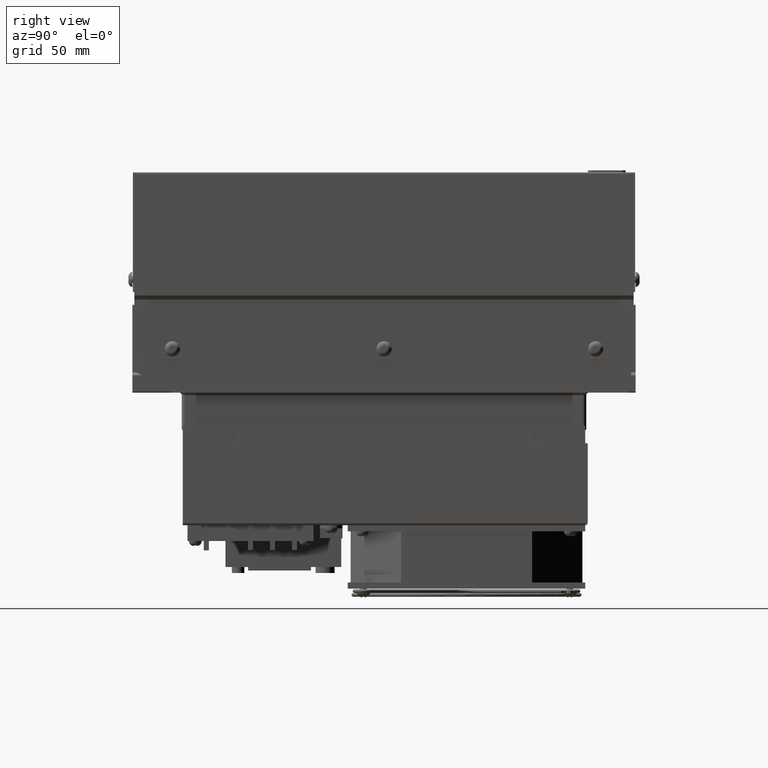
[diagram: clean part render]
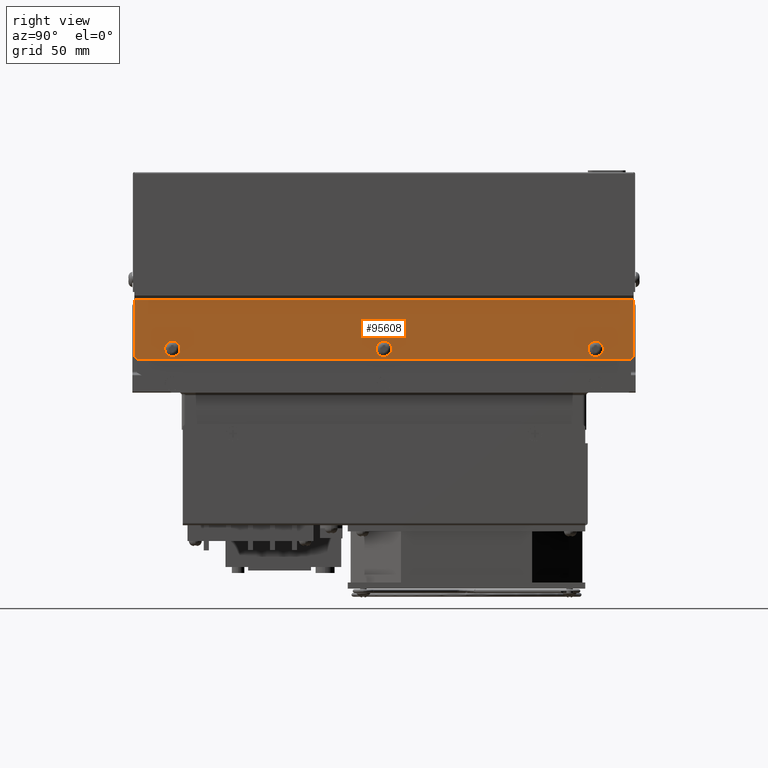
[diagram: same view with one face highlighted and labeled with its STEP entity id]
A machine part, right view. The second image highlights one B-rep face of the part: STEP entity #95608.
In plain terms, the highlighted planar face has unit normal (1, 0, 0).
Its self-contained STEP definition (entity closure, byte-faithful):
#134 = ORIENTED_EDGE ( 'NONE', *, *, #5774, .T. ) ;
#209 = EDGE_LOOP ( 'NONE', ( #54137, #74664 ) ) ;
#1973 = CARTESIAN_POINT ( 'NONE',  ( 3.979614742927883900, -3.644400000000000100, 5.649725254076705600 ) ) ;
#3207 = VECTOR ( 'NONE', #66459, 39.37007874015748100 ) ;
#4606 = CARTESIAN_POINT ( 'NONE',  ( 3.979614742927883900, -13.51440000000000200, 5.699725254076705400 ) ) ;
#5100 = ORIENTED_EDGE ( 'NONE', *, *, #68242, .T. ) ;
#5774 = EDGE_CURVE ( 'NONE', #29839, #86922, #36376, .T. ) ;
#8900 = EDGE_CURVE ( 'NONE', #45495, #24606, #87462, .T. ) ;
#10615 = VECTOR ( 'NONE', #96714, 39.37007874015748100 ) ;
#11985 = VECTOR ( 'NONE', #14662, 39.37007874015748100 ) ;
#12215 = CIRCLE ( 'NONE', #13303, 0.07799999999999955600 ) ;
#13168 = EDGE_CURVE ( 'NONE', #65479, #49522, #45879, .T. ) ;
#13303 = AXIS2_PLACEMENT_3D ( 'NONE', #69603, #23542, #77303 ) ;
#13685 = LINE ( 'NONE', #33733, #93123 ) ;
#14662 = DIRECTION ( 'NONE',  ( -0.0000000000000000000, 1.000000000000000000, 0.0000000000000000000 ) ) ;
#15142 = CARTESIAN_POINT ( 'NONE',  ( 3.979614742927885200, -12.76432955380341200, 5.858333312979771900 ) ) ;
#17455 = AXIS2_PLACEMENT_3D ( 'NONE', #28736, #82526, #36508 ) ;
#18359 = VECTOR ( 'NONE', #24644, 39.37007874015748100 ) ;
#18609 = DIRECTION ( 'NONE',  ( -0.0000000000000000000, 0.0000000000000000000, -1.000000000000000000 ) ) ;
#19700 = CIRCLE ( 'NONE', #30820, 0.07799999999999955600 ) ;
#19822 = CARTESIAN_POINT ( 'NONE',  ( 3.979614742927885200, -12.76432955380341200, 5.858333312979771900 ) ) ;
#21175 = CARTESIAN_POINT ( 'NONE',  ( 3.979614742927883900, -13.46440000000000100, 5.649725254076705600 ) ) ;
#22494 = CARTESIAN_POINT ( 'NONE',  ( 3.979614742927883900, -13.51440000000000200, 5.699725254076706300 ) ) ;
#22583 = AXIS2_PLACEMENT_3D ( 'NONE', #98969, #83857, #37825 ) ;
#22832 = DIRECTION ( 'NONE',  ( 0.0000000000000000000, 0.0000000000000000000, -1.000000000000000000 ) ) ;
#23321 = EDGE_CURVE ( 'NONE', #88721, #70399, #99723, .T. ) ;
#23337 = DIRECTION ( 'NONE',  ( -1.000000000000000000, -0.0000000000000000000, -0.0000000000000000000 ) ) ;
#23542 = DIRECTION ( 'NONE',  ( -1.000000000000000000, -0.0000000000000000000, -0.0000000000000000000 ) ) ;
#24606 = VERTEX_POINT ( 'NONE', #82992 ) ;
#24644 = DIRECTION ( 'NONE',  ( 0.0000000000000000000, 0.7071067811865398000, 0.7071067811865552300 ) ) ;
#27158 = CARTESIAN_POINT ( 'NONE',  ( 3.979614742927885200, -12.76432955380341200, 5.780333312979772500 ) ) ;
#27540 = DIRECTION ( 'NONE',  ( 0.0000000000000000000, 0.0000000000000000000, -1.000000000000000000 ) ) ;
#28736 = CARTESIAN_POINT ( 'NONE',  ( 3.979614742927885200, -8.554329553803414800, 5.858333312979771900 ) ) ;
#29839 = VERTEX_POINT ( 'NONE', #92424 ) ;
#30820 = AXIS2_PLACEMENT_3D ( 'NONE', #69413, #23337, #77109 ) ;
#31291 = VERTEX_POINT ( 'NONE', #21175 ) ;
#31868 = EDGE_CURVE ( 'NONE', #86922, #29839, #19700, .T. ) ;
#32519 = CARTESIAN_POINT ( 'NONE',  ( 3.979614742927883900, -3.594400000000000300, 5.699725254076706300 ) ) ;
#33105 = VECTOR ( 'NONE', #91751, 39.37007874015748100 ) ;
#33733 = CARTESIAN_POINT ( 'NONE',  ( 3.979614742927883900, -13.51440000000000200, 5.649725254076705600 ) ) ;
#34564 = EDGE_CURVE ( 'NONE', #31291, #68345, #73316, .T. ) ;
#35724 = EDGE_LOOP ( 'NONE', ( #5100, #69642 ) ) ;
#36121 = CARTESIAN_POINT ( 'NONE',  ( 3.979614742927885200, -4.344329553803413900, 5.858333312979771900 ) ) ;
#36376 = CIRCLE ( 'NONE', #17455, 0.07799999999999955600 ) ;
#36508 = DIRECTION ( 'NONE',  ( 0.0000000000000000000, 0.0000000000000000000, -1.000000000000000000 ) ) ;
#37825 = DIRECTION ( 'NONE',  ( 0.0000000000000000000, 0.0000000000000000000, -1.000000000000000000 ) ) ;
#40107 = CARTESIAN_POINT ( 'NONE',  ( 3.979614742927883900, -3.644400000000000100, 5.649725254076705600 ) ) ;
#41207 = LINE ( 'NONE', #40107, #18359 ) ;
#42380 = FACE_BOUND ( 'NONE', #83481, .T. ) ;
#42491 = AXIS2_PLACEMENT_3D ( 'NONE', #15142, #68931, #22832 ) ;
#42892 = CARTESIAN_POINT ( 'NONE',  ( 3.979614742927882100, -14.01040000000000400, 6.839725254076706000 ) ) ;
#43851 = DIRECTION ( 'NONE',  ( 0.0000000000000000000, 0.0000000000000000000, -1.000000000000000000 ) ) ;
#45495 = VERTEX_POINT ( 'NONE', #32519 ) ;
#45879 = CIRCLE ( 'NONE', #89991, 0.07799999999999955600 ) ;
#49522 = VERTEX_POINT ( 'NONE', #85397 ) ;
#50293 = EDGE_LOOP ( 'NONE', ( #53415, #90873, #62349, #94752, #75755, #60813 ) ) ;
#51104 = VERTEX_POINT ( 'NONE', #70248 ) ;
#52954 = PLANE ( 'NONE',  #22583 ) ;
#53415 = ORIENTED_EDGE ( 'NONE', *, *, #84178, .F. ) ;
#53598 = LINE ( 'NONE', #22494, #33105 ) ;
#54137 = ORIENTED_EDGE ( 'NONE', *, *, #91946, .T. ) ;
#58047 = EDGE_CURVE ( 'NONE', #68345, #45495, #41207, .T. ) ;
#60813 = ORIENTED_EDGE ( 'NONE', *, *, #8900, .T. ) ;
#62349 = ORIENTED_EDGE ( 'NONE', *, *, #71744, .T. ) ;
#62839 = FACE_OUTER_BOUND ( 'NONE', #50293, .T. ) ;
#65479 = VERTEX_POINT ( 'NONE', #89909 ) ;
#66459 = DIRECTION ( 'NONE',  ( -0.0000000000000000000, 0.0000000000000000000, 1.000000000000000000 ) ) ;
#67773 = CARTESIAN_POINT ( 'NONE',  ( 3.979614742927885200, -8.554329553803414800, 5.936333312979771300 ) ) ;
#68242 = EDGE_CURVE ( 'NONE', #70399, #88721, #76229, .T. ) ;
#68345 = VERTEX_POINT ( 'NONE', #1973 ) ;
#68931 = DIRECTION ( 'NONE',  ( -1.000000000000000000, -0.0000000000000000000, -0.0000000000000000000 ) ) ;
#69413 = CARTESIAN_POINT ( 'NONE',  ( 3.979614742927885200, -8.554329553803414800, 5.858333312979771900 ) ) ;
#69603 = CARTESIAN_POINT ( 'NONE',  ( 3.979614742927885200, -4.344329553803413900, 5.858333312979771900 ) ) ;
#69642 = ORIENTED_EDGE ( 'NONE', *, *, #23321, .T. ) ;
#70248 = CARTESIAN_POINT ( 'NONE',  ( 3.979614742927883000, -13.51440000000000200, 6.839725254076705100 ) ) ;
#70399 = VERTEX_POINT ( 'NONE', #27158 ) ;
#71744 = EDGE_CURVE ( 'NONE', #98167, #31291, #53598, .T. ) ;
#71951 = LINE ( 'NONE', #42892, #10615 ) ;
#73316 = LINE ( 'NONE', #99035, #11985 ) ;
#73568 = DIRECTION ( 'NONE',  ( -1.000000000000000000, -0.0000000000000000000, -0.0000000000000000000 ) ) ;
#74664 = ORIENTED_EDGE ( 'NONE', *, *, #13168, .T. ) ;
#75259 = AXIS2_PLACEMENT_3D ( 'NONE', #19822, #73568, #27540 ) ;
#75755 = ORIENTED_EDGE ( 'NONE', *, *, #58047, .T. ) ;
#76229 = CIRCLE ( 'NONE', #42491, 0.07799999999999955600 ) ;
#77109 = DIRECTION ( 'NONE',  ( 0.0000000000000000000, 0.0000000000000000000, -1.000000000000000000 ) ) ;
#77303 = DIRECTION ( 'NONE',  ( 0.0000000000000000000, 0.0000000000000000000, -1.000000000000000000 ) ) ;
#80551 = EDGE_CURVE ( 'NONE', #51104, #98167, #13685, .T. ) ;
#81854 = CARTESIAN_POINT ( 'NONE',  ( 3.979614742927883900, -3.594400000000000700, 9.553225254076707500 ) ) ;
#82526 = DIRECTION ( 'NONE',  ( -1.000000000000000000, -0.0000000000000000000, -0.0000000000000000000 ) ) ;
#82992 = CARTESIAN_POINT ( 'NONE',  ( 3.979614742927883400, -3.594400000000000300, 6.839725254076705100 ) ) ;
#83275 = FACE_BOUND ( 'NONE', #35724, .T. ) ;
#83457 = ORIENTED_EDGE ( 'NONE', *, *, #31868, .T. ) ;
#83481 = EDGE_LOOP ( 'NONE', ( #134, #83457 ) ) ;
#83857 = DIRECTION ( 'NONE',  ( 1.000000000000000000, 0.0000000000000000000, 0.0000000000000000000 ) ) ;
#84178 = EDGE_CURVE ( 'NONE', #51104, #24606, #71951, .T. ) ;
#85397 = CARTESIAN_POINT ( 'NONE',  ( 3.979614742927885200, -4.344329553803413900, 5.780333312979772500 ) ) ;
#86922 = VERTEX_POINT ( 'NONE', #67773 ) ;
#87462 = LINE ( 'NONE', #81854, #3207 ) ;
#88721 = VERTEX_POINT ( 'NONE', #91673 ) ;
#89909 = CARTESIAN_POINT ( 'NONE',  ( 3.979614742927885200, -4.344329553803413900, 5.936333312979771300 ) ) ;
#89915 = DIRECTION ( 'NONE',  ( -1.000000000000000000, -0.0000000000000000000, -0.0000000000000000000 ) ) ;
#89991 = AXIS2_PLACEMENT_3D ( 'NONE', #36121, #89915, #43851 ) ;
#90873 = ORIENTED_EDGE ( 'NONE', *, *, #80551, .T. ) ;
#91673 = CARTESIAN_POINT ( 'NONE',  ( 3.979614742927885200, -12.76432955380341200, 5.936333312979771300 ) ) ;
#91751 = DIRECTION ( 'NONE',  ( 0.0000000000000000000, 0.7071067811865398000, -0.7071067811865552300 ) ) ;
#91946 = EDGE_CURVE ( 'NONE', #49522, #65479, #12215, .T. ) ;
#92424 = CARTESIAN_POINT ( 'NONE',  ( 3.979614742927885200, -8.554329553803414800, 5.780333312979772500 ) ) ;
#92976 = FACE_BOUND ( 'NONE', #209, .T. ) ;
#93123 = VECTOR ( 'NONE', #18609, 39.37007874015748100 ) ;
#94752 = ORIENTED_EDGE ( 'NONE', *, *, #34564, .T. ) ;
#95608 = ADVANCED_FACE ( 'NONE', ( #92976, #42380, #83275, #62839 ), #52954, .T. ) ;
#96714 = DIRECTION ( 'NONE',  ( 0.0000000000000000000, 1.000000000000000000, 0.0000000000000000000 ) ) ;
#98167 = VERTEX_POINT ( 'NONE', #4606 ) ;
#98969 = CARTESIAN_POINT ( 'NONE',  ( 3.979614742927883900, -14.01040000000000400, 6.899225254076704100 ) ) ;
#99035 = CARTESIAN_POINT ( 'NONE',  ( 3.979614742927883900, -14.01040000000000400, 5.649725254076705600 ) ) ;
#99723 = CIRCLE ( 'NONE', #75259, 0.07799999999999955600 ) ;